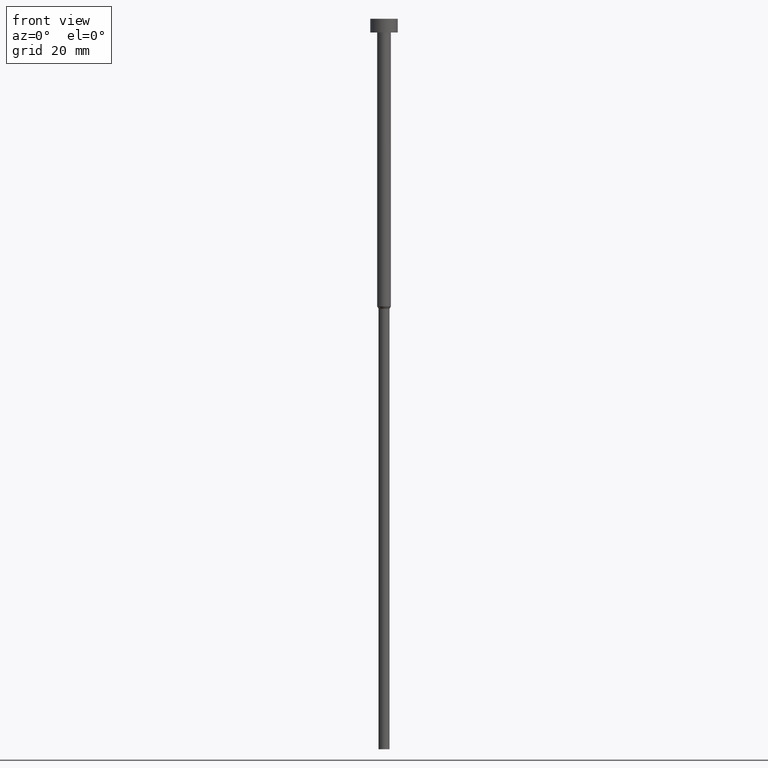
[diagram: clean part render]
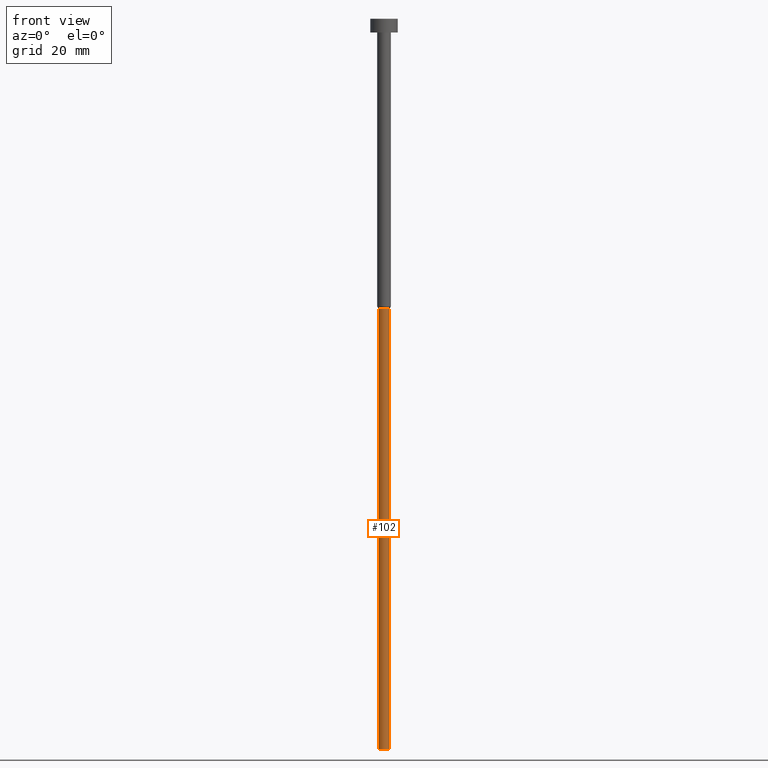
[diagram: same view with one face highlighted and labeled with its STEP entity id]
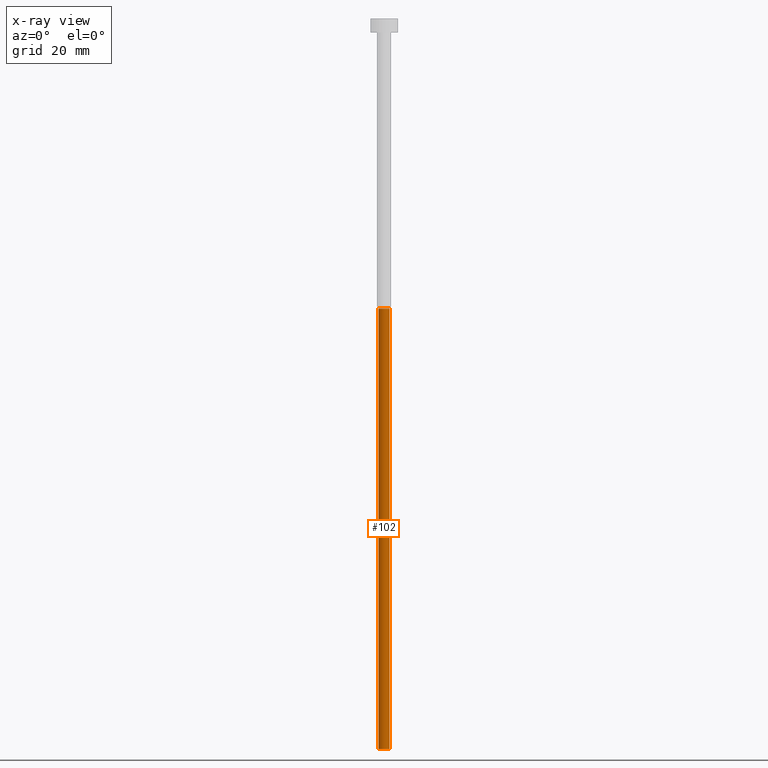
[diagram: x-ray of the same camera — body ghosted, the highlighted face saturated]
A machine part, front view. The second image highlights one B-rep face of the part: STEP entity #102.
The next image is the same camera in x-ray: the body ghosted, the highlighted face saturated — about 0% of this face is hidden behind the body in this view.
In plain terms, the highlighted cylindrical surface (edge-blend (fillet) strip) has radius 1.2 mm, axis along (-0, -0, 1).
Its self-contained STEP definition (entity closure, byte-faithful):
#23 = AXIS2_PLACEMENT_3D ( 'NONE', #204, #343, #344 ) ;
#34 = VERTEX_POINT ( 'NONE', #355 ) ;
#47 = CARTESIAN_POINT ( 'NONE',  ( -1.199999999999999956, 1.469576158976823553E-16, -160.0000000000000000 ) ) ;
#50 = CARTESIAN_POINT ( 'NONE',  ( 1.199999999999999956, 0.000000000000000000, 0.000000000000000000 ) ) ;
#51 = DIRECTION ( 'NONE',  ( 1.000000000000000000, 0.000000000000000000, 0.000000000000000000 ) ) ;
#59 = VERTEX_POINT ( 'NONE', #232 ) ;
#71 = DIRECTION ( 'NONE',  ( -0.000000000000000000, -0.000000000000000000, 1.000000000000000000 ) ) ;
#83 = VERTEX_POINT ( 'NONE', #47 ) ;
#89 = ORIENTED_EDGE ( 'NONE', *, *, #342, .T. ) ;
#92 = ORIENTED_EDGE ( 'NONE', *, *, #346, .F. ) ;
#93 = CIRCLE ( 'NONE', #207, 1.199999999999999956 ) ;
#102 = ADVANCED_FACE ( 'NONE', ( #160 ), #340, .T. ) ;
#105 = CARTESIAN_POINT ( 'NONE',  ( -1.199999999999999956, 1.469576158976823553E-16, -63.51961524227066036 ) ) ;
#112 = VECTOR ( 'NONE', #313, 1000.000000000000000 ) ;
#114 = ORIENTED_EDGE ( 'NONE', *, *, #297, .T. ) ;
#124 = CARTESIAN_POINT ( 'NONE',  ( -1.199999999999999956, 1.469576158976823553E-16, 0.000000000000000000 ) ) ;
#128 = LINE ( 'NONE', #124, #112 ) ;
#135 = VECTOR ( 'NONE', #161, 1000.000000000000000 ) ;
#158 = EDGE_CURVE ( 'NONE', #83, #236, #128, .T. ) ;
#160 = FACE_OUTER_BOUND ( 'NONE', #166, .T. ) ;
#161 = DIRECTION ( 'NONE',  ( -0.000000000000000000, -0.000000000000000000, 1.000000000000000000 ) ) ;
#163 = DIRECTION ( 'NONE',  ( 1.000000000000000000, 0.000000000000000000, 0.000000000000000000 ) ) ;
#166 = EDGE_LOOP ( 'NONE', ( #203, #114, #89, #92 ) ) ;
#186 = LINE ( 'NONE', #50, #135 ) ;
#203 = ORIENTED_EDGE ( 'NONE', *, *, #158, .F. ) ;
#204 = CARTESIAN_POINT ( 'NONE',  ( 0.000000000000000000, 0.000000000000000000, 0.000000000000000000 ) ) ;
#207 = AXIS2_PLACEMENT_3D ( 'NONE', #318, #71, #51 ) ;
#232 = CARTESIAN_POINT ( 'NONE',  ( 1.199999999999999956, 0.000000000000000000, -160.0000000000000000 ) ) ;
#236 = VERTEX_POINT ( 'NONE', #105 ) ;
#237 = CIRCLE ( 'NONE', #278, 1.199999999999999956 ) ;
#270 = CARTESIAN_POINT ( 'NONE',  ( 0.000000000000000000, 0.000000000000000000, -63.51961524227066036 ) ) ;
#278 = AXIS2_PLACEMENT_3D ( 'NONE', #270, #323, #163 ) ;
#297 = EDGE_CURVE ( 'NONE', #83, #59, #93, .T. ) ;
#313 = DIRECTION ( 'NONE',  ( -0.000000000000000000, -0.000000000000000000, 1.000000000000000000 ) ) ;
#318 = CARTESIAN_POINT ( 'NONE',  ( 0.000000000000000000, 0.000000000000000000, -160.0000000000000000 ) ) ;
#323 = DIRECTION ( 'NONE',  ( -0.000000000000000000, -0.000000000000000000, 1.000000000000000000 ) ) ;
#340 = CYLINDRICAL_SURFACE ( 'NONE', #23, 1.199999999999999956 ) ;
#342 = EDGE_CURVE ( 'NONE', #59, #34, #186, .T. ) ;
#343 = DIRECTION ( 'NONE',  ( -0.000000000000000000, -0.000000000000000000, 1.000000000000000000 ) ) ;
#344 = DIRECTION ( 'NONE',  ( 1.000000000000000000, 0.000000000000000000, 0.000000000000000000 ) ) ;
#346 = EDGE_CURVE ( 'NONE', #236, #34, #237, .T. ) ;
#355 = CARTESIAN_POINT ( 'NONE',  ( 1.199999999999999956, 0.000000000000000000, -63.51961524227066036 ) ) ;